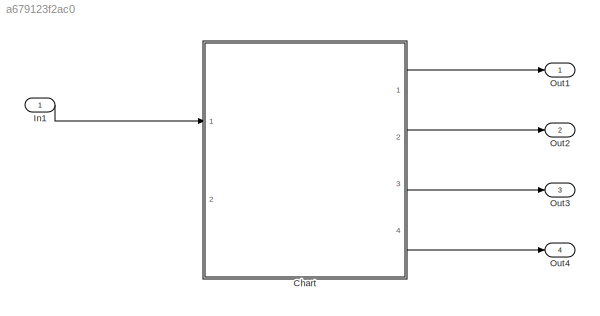
MODEL slx_a679123f2ac0
KIND model
CONFIG AbsTol = auto
CONFIG EnableMultiTasking = off
CONFIG FixedStep = auto
CONFIG MaxStep = auto
CONFIG MinStep = auto
CONFIG RelTol = 1e-3
CONFIG SampleTimeConstraint = Unconstrained
CONFIG Solver = FixedStepDiscrete
CONFIG SolverName = FixedStepDiscrete
CONFIG StartTime = 0.0
CONFIG StopTime = 10.0
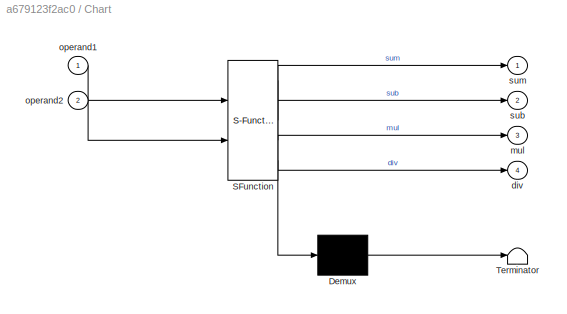
BLOCK [SubSystem] Chart
  ErrorFcn = Stateflow.Translate.translate
  PermitHierarchicalResolution = ExplicitOnly
  Ports = [2, 4]
  RequestExecContextInheritance = off
  SFBlockType = Chart
  TreatAsAtomicUnit = on
  Variant = off
BLOCK [Demux] Chart/ Demux 
  Outputs = 1
  Ports = [1, 1]
BLOCK [S-Function] Chart/ SFunction 
  EnableBusSupport = on
  FunctionName = sf_sfun
  PortCounts = [2 5]
  Ports = [2, 5]
  SFcnIsStateOwnerBlock = off
  SFunctionDeploymentMode = off
  Tag = Stateflow S-Function stateFlowCalc 3
BLOCK [Terminator] Chart/ Terminator 
BLOCK [Outport] Chart/div
  IconDisplay = Port number
  Port = 4
BLOCK [Outport] Chart/mul
  IconDisplay = Port number
  Port = 3
BLOCK [Inport] Chart/operand1
  IconDisplay = Port number
BLOCK [Inport] Chart/operand2
  IconDisplay = Port number
  Port = 2
BLOCK [Outport] Chart/sub
  IconDisplay = Port number
  Port = 2
BLOCK [Outport] Chart/sum
  IconDisplay = Port number
BLOCK [Inport] In1
  IconDisplay = Port number
BLOCK [Outport] Out1
  IconDisplay = Port number
BLOCK [Outport] Out2
  IconDisplay = Port number
  Port = 2
BLOCK [Outport] Out3
  IconDisplay = Port number
  Port = 3
BLOCK [Outport] Out4
  IconDisplay = Port number
  Port = 4
LINE Chart:1 -> Out1:1
LINE Chart:2 -> Out2:1
LINE Chart:3 -> Out3:1
LINE Chart:4 -> Out4:1
LINE In1:1 -> Chart:1
CHART Chart states=1 transitions=7
  STATE_LABEL '\nCalcState\nentry: sum=operand1+operand2;\n sub=operand1-operand2;\n mul=operand1*operand2;\n'
